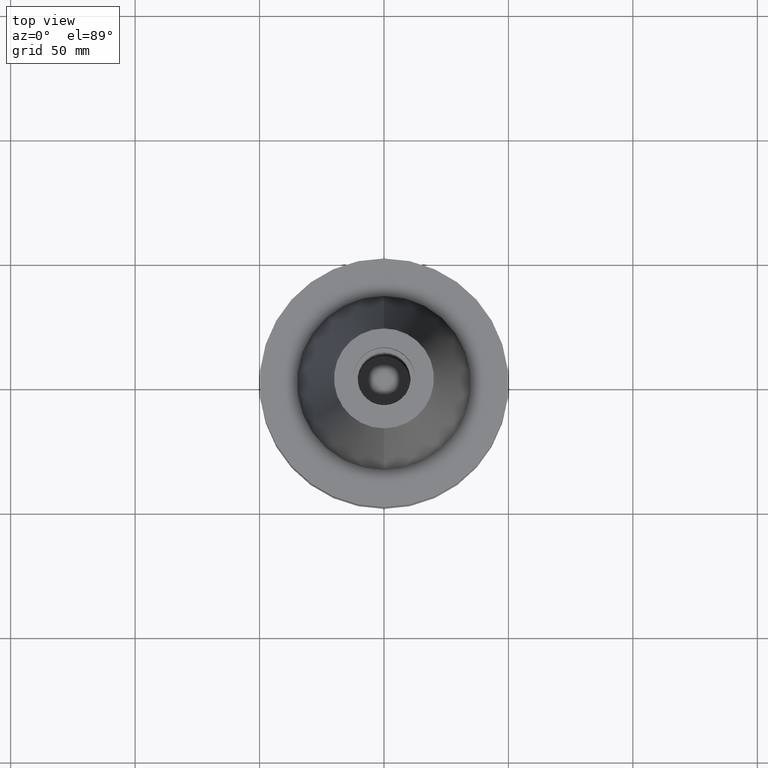
[diagram: clean part render]
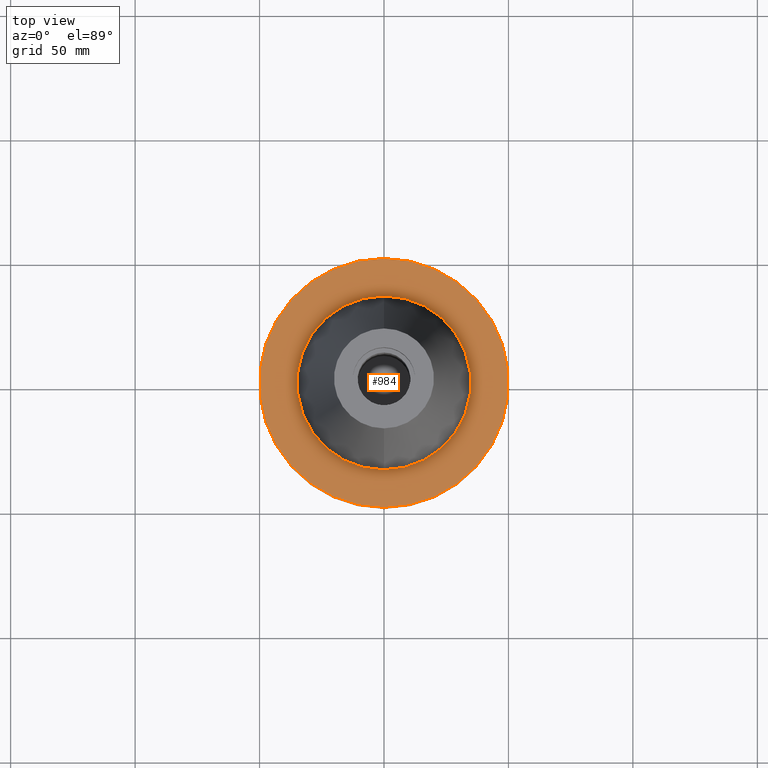
[diagram: same view with one face highlighted and labeled with its STEP entity id]
A machine part, top view. The second image highlights one B-rep face of the part: STEP entity #984.
In plain terms, the highlighted planar face has unit normal (0, 0, -1).
Its self-contained STEP definition (entity closure, byte-faithful):
#170=CARTESIAN_POINT('',(0.E0,2.629194213089E-14,-1.5E0));
#171=DIRECTION('',(0.E0,0.E0,-1.E0));
#172=DIRECTION('',(0.E0,1.E0,0.E0));
#173=AXIS2_PLACEMENT_3D('',#170,#171,#172);
#178=CARTESIAN_POINT('',(0.E0,2.629194213089E-14,-1.5E0));
#179=DIRECTION('',(0.E0,0.E0,-1.E0));
#180=DIRECTION('',(0.E0,-1.E0,0.E0));
#181=AXIS2_PLACEMENT_3D('',#178,#179,#180);
#186=CARTESIAN_POINT('',(0.E0,2.629194213089E-14,-1.5E0));
#187=DIRECTION('',(0.E0,0.E0,1.E0));
#188=DIRECTION('',(0.E0,1.E0,0.E0));
#189=AXIS2_PLACEMENT_3D('',#186,#187,#188);
#194=CARTESIAN_POINT('',(0.E0,2.629194213089E-14,-1.5E0));
#195=DIRECTION('',(0.E0,0.E0,1.E0));
#196=DIRECTION('',(0.E0,-1.E0,0.E0));
#197=AXIS2_PLACEMENT_3D('',#194,#195,#196);
#730=CARTESIAN_POINT('',(0.E0,3.4925E1,-1.5E0));
#731=VERTEX_POINT('',#730);
#732=CARTESIAN_POINT('',(0.E0,-3.4925E1,-1.5E0));
#733=VERTEX_POINT('',#732);
#734=CARTESIAN_POINT('',(0.E0,5.E1,-1.5E0));
#735=CARTESIAN_POINT('',(0.E0,-5.E1,-1.5E0));
#736=VERTEX_POINT('',#734);
#737=VERTEX_POINT('',#735);
#969=CARTESIAN_POINT('',(0.E0,1.206277097160E-14,-1.5E0));
#970=DIRECTION('',(0.E0,0.E0,-1.E0));
#971=DIRECTION('',(0.E0,-1.E0,0.E0));
#972=AXIS2_PLACEMENT_3D('',#969,#970,#971);
#973=PLANE('',#972);
#975=ORIENTED_EDGE('',*,*,#974,.T.);
#977=ORIENTED_EDGE('',*,*,#976,.T.);
#978=EDGE_LOOP('',(#975,#977));
#979=FACE_OUTER_BOUND('',#978,.F.);
#980=ORIENTED_EDGE('',*,*,#951,.T.);
#981=ORIENTED_EDGE('',*,*,#962,.T.);
#982=EDGE_LOOP('',(#980,#981));
#983=FACE_BOUND('',#982,.F.);
#174=CIRCLE('',#173,5.E1);
#182=CIRCLE('',#181,5.E1);
#190=CIRCLE('',#189,3.4925E1);
#198=CIRCLE('',#197,3.4925E1);
#951=EDGE_CURVE('',#731,#733,#190,.T.);
#962=EDGE_CURVE('',#733,#731,#198,.T.);
#974=EDGE_CURVE('',#736,#737,#174,.T.);
#976=EDGE_CURVE('',#737,#736,#182,.T.);
#984=ADVANCED_FACE('',(#979,#983),#973,.F.);